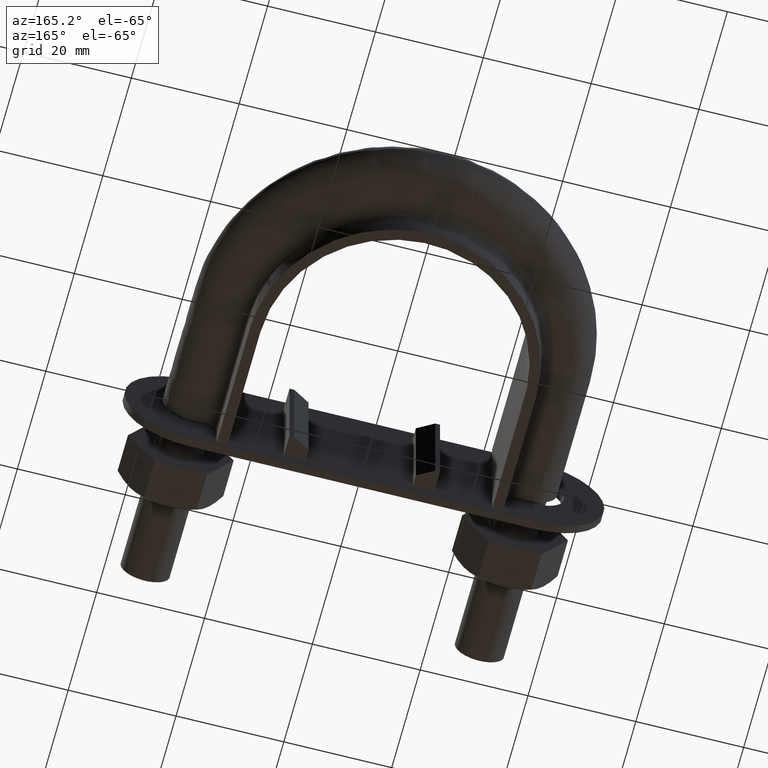
[diagram: clean part render]
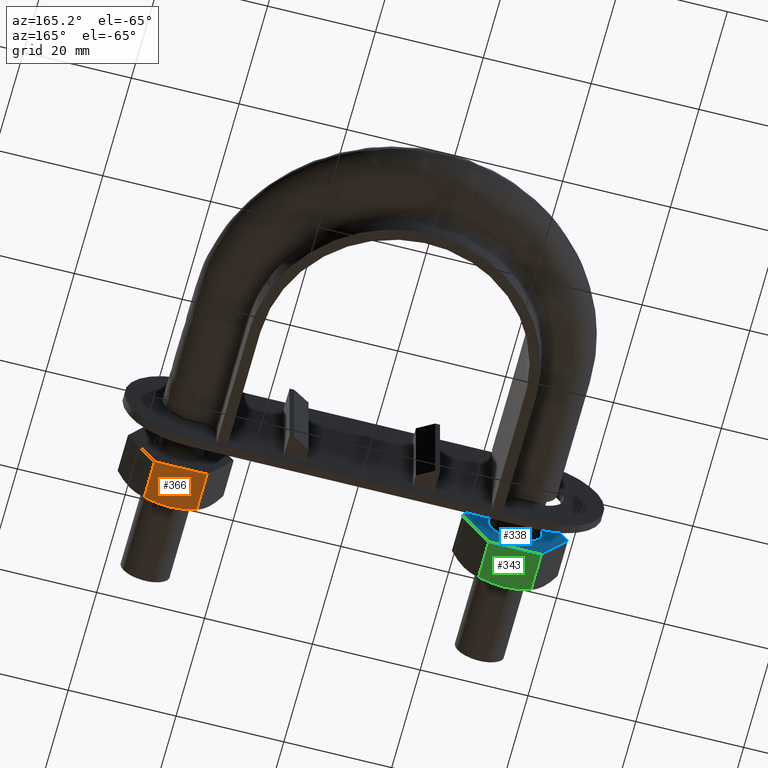
[diagram: same view with three faces highlighted in distinct colors, each labeled with its STEP entity id]
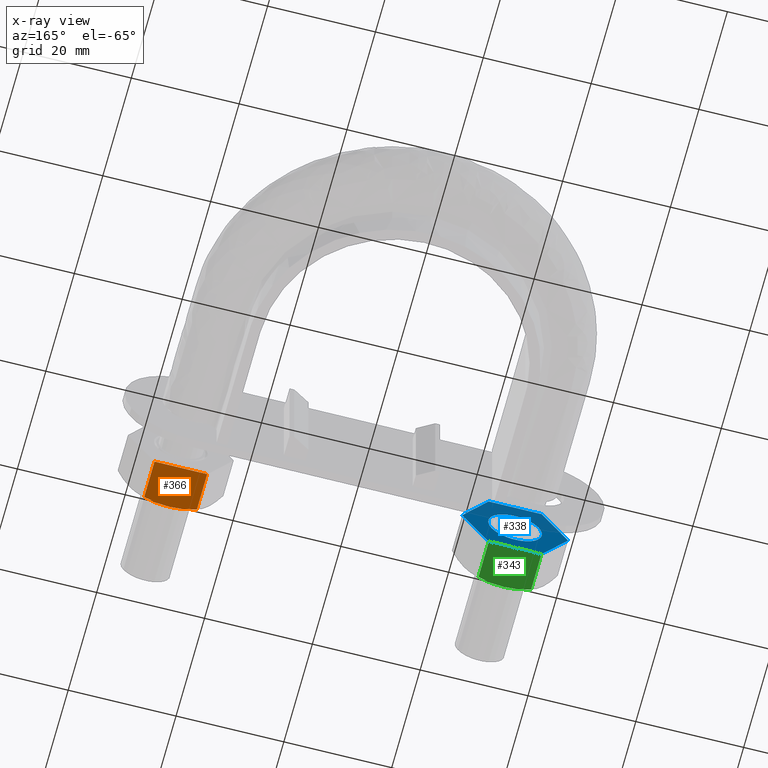
[diagram: x-ray of the same camera — body ghosted, the three highlighted faces saturated]
A machine part, auxiliary view with three faces highlighted in distinct colors.
The next image is the same camera in x-ray (body ghosted, the three faces saturated) — at least one of them is partly hidden behind the body in this view.
Their STEP definitions:

[orange] entity #366 — the highlighted planar face has unit normal (-0, -0, 1).
#366 = ADVANCED_FACE( '', ( #607 ), #608, .F. );
#607 = FACE_OUTER_BOUND( '', #1689, .T. );
#608 = PLANE( '', #1690 );
#1689 = EDGE_LOOP( '', ( #2450, #2451, #2452, #2453, #2454 ) );
#1690 = AXIS2_PLACEMENT_3D( '', #2455, #2456, #2457 );
#2450 = ORIENTED_EDGE( '', *, *, #2771, .F. );
#2451 = ORIENTED_EDGE( '', *, *, #2766, .F. );
#2452 = ORIENTED_EDGE( '', *, *, #2772, .F. );
#2453 = ORIENTED_EDGE( '', *, *, #2758, .F. );
#2454 = ORIENTED_EDGE( '', *, *, #2773, .F. );
#2455 = CARTESIAN_POINT( '', ( 35.9074772881823, 25.0000000000000, -8.49999999995891 ) );
#2456 = DIRECTION( '', ( -8.30657764794306E-012, -3.06151588453560E-016, 1.00000000000000 ) );
#2457 = DIRECTION( '', ( 1.00000000000000, -2.44921270767019E-016, 8.30657764794306E-012 ) );
#2758 = EDGE_CURVE( '', #3142, #3144, #3145, .T. );
#2766 = EDGE_CURVE( '', #3156, #3105, #3158, .T. );
#2771 = EDGE_CURVE( '', #3105, #3163, #3164, .T. );
#2772 = EDGE_CURVE( '', #3144, #3156, #3165, .F. );
#2773 = EDGE_CURVE( '', #3163, #3142, #3166, .T. );
#3105 = VERTEX_POINT( '', #3913 );
#3142 = VERTEX_POINT( '', #3968 );
#3144 = VERTEX_POINT( '', #3970 );
#3145 = LINE( '', #3971, #3972 );
#3156 = VERTEX_POINT( '', #3993 );
#3158 = B_SPLINE_CURVE_WITH_KNOTS( '', 3, ( #3995, #3996, #3997, #3998, #3999, #4000 ), .UNSPECIFIED., .F., .F., ( 4, 2, 4 ), ( 4.83064900408887E-007, 0.00246777364959045, 0.00493506423428049 ), .UNSPECIFIED. );
#3163 = VERTEX_POINT( '', #4017 );
#3164 = B_SPLINE_CURVE_WITH_KNOTS( '', 3, ( #4018, #4019, #4020, #4021, #4022, #4023, #4024, #4025 ), .UNSPECIFIED., .F., .F., ( 4, 2, 2, 4 ), ( 0.00493506423428049, 0.00616384870526260, 0.00739263317624470, 0.00985020211820889 ), .UNSPECIFIED. );
#3165 = LINE( '', #4026, #4027 );
#3166 = LINE( '', #4028, #4029 );
#3913 = CARTESIAN_POINT( '', ( 31.0000000000706, 17.0000000000012, -8.49999999999903 ) );
#3968 = CARTESIAN_POINT( '', ( 35.8774993593733, 25.0000000000000, -8.49999999995915 ) );
#3970 = CARTESIAN_POINT( '', ( 26.1225006407679, 25.0000000000000, -8.50000000003891 ) );
#3971 = CARTESIAN_POINT( '', ( 26.1000000000708, 25.0000000000000, -8.50000000003909 ) );
#3972 = VECTOR( '', #4386, 1000.00000000006 );
#3993 = CARTESIAN_POINT( '', ( 26.1225006407679, 17.7505553499476, -8.50000000003891 ) );
#3995 = CARTESIAN_POINT( '', ( 26.1225006407680, 17.7505553499480, -8.50000000004019 ) );
#3996 = CARTESIAN_POINT( '', ( 26.9206053693297, 17.5212203171293, -8.50000000003356 ) );
#3997 = CARTESIAN_POINT( '', ( 27.7244743058135, 17.3324525365456, -8.50000000002688 ) );
#3998 = CARTESIAN_POINT( '', ( 29.3487653826148, 17.0714148540601, -8.50000000001339 ) );
#3999 = CARTESIAN_POINT( '', ( 30.1693090168289, 17.0000000000015, -8.50000000000657 ) );
#4000 = CARTESIAN_POINT( '', ( 31.0000000000707, 17.0000000000015, -8.49999999999967 ) );
#4017 = CARTESIAN_POINT( '', ( 35.8774993593733, 17.7505553499476, -8.49999999995915 ) );
#4018 = CARTESIAN_POINT( '', ( 31.0000000000707, 17.0000000000015, -8.49999999999967 ) );
#4019 = CARTESIAN_POINT( '', ( 31.4137089432840, 17.0000000000015, -8.49999999999624 ) );
#4020 = CARTESIAN_POINT( '', ( 31.8294869254980, 17.0177112081779, -8.49999999999278 ) );
#4021 = CARTESIAN_POINT( '', ( 32.6519999770928, 17.0863021936228, -8.49999999998595 ) );
#4022 = CARTESIAN_POINT( '', ( 33.0605223338535, 17.1371116504209, -8.49999999998256 ) );
#4023 = CARTESIAN_POINT( '', ( 34.2788691257375, 17.3331494013928, -8.49999999997244 ) );
#4024 = CARTESIAN_POINT( '', ( 35.0815000651596, 17.5218253127370, -8.49999999996577 ) );
#4025 = CARTESIAN_POINT( '', ( 35.8774993593733, 17.7505553499480, -8.49999999995916 ) );
#4026 = CARTESIAN_POINT( '', ( 26.1225006407679, 25.0000000000000, -8.50000000003891 ) );
#4027 = VECTOR( '', #4401, 999.999999999950 );
#4028 = CARTESIAN_POINT( '', ( 35.8774993593733, 25.0000000000000, -8.49999999995915 ) );
#4029 = VECTOR( '', #4402, 999.999999999950 );
#4386 = DIRECTION( '', ( -1.00000000000000, 2.44921270766979E-016, -8.17579337564160E-012 ) );
#4401 = DIRECTION( '', ( 2.44921270764475E-016, 1.00000000000000, 3.06151588455594E-016 ) );
#4402 = DIRECTION( '', ( 2.44921270764475E-016, 1.00000000000000, 3.06151588455594E-016 ) );

[blue] entity #338 — the highlighted planar face has unit normal (-0, -1, -0).
#338 = ADVANCED_FACE( '', ( #545, #546 ), #547, .F. );
#545 = FACE_BOUND( '', #1627, .T. );
#546 = FACE_OUTER_BOUND( '', #1628, .T. );
#547 = PLANE( '', #1629 );
#1627 = EDGE_LOOP( '', ( #2231 ) );
#1628 = EDGE_LOOP( '', ( #2232, #2233, #2234, #2235, #2236, #2237, #2238, #2239, #2240, #2241, #2242, #2243 ) );
#1629 = AXIS2_PLACEMENT_3D( '', #2244, #2245, #2246 );
#2231 = ORIENTED_EDGE( '', *, *, #2697, .F. );
#2232 = ORIENTED_EDGE( '', *, *, #2698, .T. );
#2233 = ORIENTED_EDGE( '', *, *, #2699, .T. );
#2234 = ORIENTED_EDGE( '', *, *, #2700, .T. );
#2235 = ORIENTED_EDGE( '', *, *, #2693, .T. );
#2236 = ORIENTED_EDGE( '', *, *, #2701, .T. );
#2237 = ORIENTED_EDGE( '', *, *, #2702, .T. );
#2238 = ORIENTED_EDGE( '', *, *, #2703, .T. );
#2239 = ORIENTED_EDGE( '', *, *, #2704, .T. );
#2240 = ORIENTED_EDGE( '', *, *, #2705, .T. );
#2241 = ORIENTED_EDGE( '', *, *, #2706, .T. );
#2242 = ORIENTED_EDGE( '', *, *, #2707, .T. );
#2243 = ORIENTED_EDGE( '', *, *, #2708, .T. );
#2244 = CARTESIAN_POINT( '', ( -35.8999999999293, 25.0000000000000, -8.48704895712659 ) );
#2245 = DIRECTION( '', ( -2.44921270764475E-016, -1.00000000000000, -3.06151588455594E-016 ) );
#2246 = DIRECTION( '', ( -0.866025403788559, 5.90322481845998E-017, 0.499999999992863 ) );
#2693 = EDGE_CURVE( '', #3034, #3032, #3035, .T. );
#2697 = EDGE_CURVE( '', #3040, #3040, #3041, .T. );
#2698 = EDGE_CURVE( '', #3042, #3043, #3044, .T. );
#2699 = EDGE_CURVE( '', #3043, #3045, #3046, .T. );
#2700 = EDGE_CURVE( '', #3045, #3034, #3047, .T. );
#2701 = EDGE_CURVE( '', #3032, #3048, #3049, .T. );
#2702 = EDGE_CURVE( '', #3048, #3050, #3051, .T. );
#2703 = EDGE_CURVE( '', #3050, #3052, #3053, .T. );
#2704 = EDGE_CURVE( '', #3052, #3054, #3055, .T. );
#2705 = EDGE_CURVE( '', #3054, #3056, #3057, .T. );
#2706 = EDGE_CURVE( '', #3056, #3058, #3059, .T. );
#2707 = EDGE_CURVE( '', #3058, #3060, #3061, .T. );
#2708 = EDGE_CURVE( '', #3060, #3042, #3062, .T. );
#3032 = VERTEX_POINT( '', #3759 );
#3034 = VERTEX_POINT( '', #3762 );
#3035 = LINE( '', #3763, #3764 );
#3040 = VERTEX_POINT( '', #3777 );
#3041 = CIRCLE( '', #3778, 5.00000000000000 );
#3042 = VERTEX_POINT( '', #3779 );
#3043 = VERTEX_POINT( '', #3780 );
#3044 = CIRCLE( '', #3781, 9.80000000000000 );
#3045 = VERTEX_POINT( '', #3782 );
#3046 = LINE( '', #3783, #3784 );
#3047 = CIRCLE( '', #3785, 9.80000000000000 );
#3048 = VERTEX_POINT( '', #3786 );
#3049 = CIRCLE( '', #3787, 9.80000000000000 );
#3050 = VERTEX_POINT( '', #3788 );
#3051 = LINE( '', #3789, #3790 );
#3052 = VERTEX_POINT( '', #3791 );
#3053 = CIRCLE( '', #3792, 9.80000000000000 );
#3054 = VERTEX_POINT( '', #3793 );
#3055 = LINE( '', #3794, #3795 );
#3056 = VERTEX_POINT( '', #3796 );
#3057 = CIRCLE( '', #3797, 9.80000000000000 );
#3058 = VERTEX_POINT( '', #3798 );
#3059 = LINE( '', #3799, #3800 );
#3060 = VERTEX_POINT( '', #3801 );
#3061 = CIRCLE( '', #3802, 9.80000000000000 );
#3062 = LINE( '', #3803, #3804 );
#3759 = CARTESIAN_POINT( '', ( -26.1225006407679, 25.0000000000000, 8.50000000003892 ) );
#3762 = CARTESIAN_POINT( '', ( -35.8774993593733, 25.0000000000000, 8.49999999995917 ) );
#3763 = CARTESIAN_POINT( '', ( -35.9000000000704, 25.0000000000000, 8.49999999995899 ) );
#3764 = VECTOR( '', #4276, 1000.00000000006 );
#3777 = CARTESIAN_POINT( '', ( -26.6698729810572, 25.0000000000000, -2.49999999996431 ) );
#3778 = AXIS2_PLACEMENT_3D( '', #4281, #4282, #4283 );
#3779 = CARTESIAN_POINT( '', ( -40.7999656118186, 25.0000000000000, -0.0259616479814919 ) );
#3780 = CARTESIAN_POINT( '', ( -40.7999656118190, 25.0000000000000, 0.0259616478212634 ) );
#3781 = AXIS2_PLACEMENT_3D( '', #4284, #4285, #4286 );
#3782 = CARTESIAN_POINT( '', ( -35.9224662525865, 25.0000000000000, 8.47403835205743 ) );
#3783 = CARTESIAN_POINT( '', ( -43.2612159321321, 25.0000000000000, -4.23704895718726 ) );
#3784 = VECTOR( '', #4287, 999.999999999950 );
#3785 = AXIS2_PLACEMENT_3D( '', #4288, #4289, #4290 );
#3786 = CARTESIAN_POINT( '', ( -26.0775337475543, 25.0000000000000, 8.47403835213792 ) );
#3787 = AXIS2_PLACEMENT_3D( '', #4291, #4292, #4293 );
#3788 = CARTESIAN_POINT( '', ( -21.2000343881814, 25.0000000000000, 0.0259616479815102 ) );
#3789 = CARTESIAN_POINT( '', ( -21.1887840678327, 25.0000000000000, 0.00647552153647370 ) );
#3790 = VECTOR( '', #4294, 1000.00000000006 );
#3791 = CARTESIAN_POINT( '', ( -21.2000343881810, 25.0000000000000, -0.0259616478212477 ) );
#3792 = AXIS2_PLACEMENT_3D( '', #4295, #4296, #4297 );
#3793 = CARTESIAN_POINT( '', ( -26.0775337474135, 25.0000000000000, -8.47403835205741 ) );
#3794 = CARTESIAN_POINT( '', ( -28.5387840677266, 25.0000000000000, -12.7370489570659 ) );
#3795 = VECTOR( '', #4298, 999.999999999950 );
#3796 = CARTESIAN_POINT( '', ( -26.1225006406267, 25.0000000000000, -8.49999999995915 ) );
#3797 = AXIS2_PLACEMENT_3D( '', #4299, #4300, #4301 );
#3798 = CARTESIAN_POINT( '', ( -35.8774993592321, 25.0000000000000, -8.50000000003891 ) );
#3799 = CARTESIAN_POINT( '', ( -35.8999999999292, 25.0000000000000, -8.50000000003909 ) );
#3800 = VECTOR( '', #4302, 1000.00000000006 );
#3801 = CARTESIAN_POINT( '', ( -35.9224662524457, 25.0000000000000, -8.47403835213790 ) );
#3802 = AXIS2_PLACEMENT_3D( '', #4303, #4304, #4305 );
#3803 = CARTESIAN_POINT( '', ( -35.9112159320970, 25.0000000000000, -8.49352447858293 ) );
#3804 = VECTOR( '', #4306, 1000.00000000006 );
#4276 = DIRECTION( '', ( 1.00000000000000, -2.44921270766979E-016, 8.17579337564160E-012 ) );
#4281 = CARTESIAN_POINT( '', ( -31.0000000000000, 25.0000000000000, 7.85278824388600E-015 ) );
#4282 = DIRECTION( '', ( 2.44921270764476E-016, 1.00000000000000, 3.06151588455594E-016 ) );
#4283 = DIRECTION( '', ( 0.866025403788559, -5.90322481845998E-017, -0.499999999992863 ) );
#4284 = CARTESIAN_POINT( '', ( -31.0000000000000, 25.0000000000000, 7.85278824388600E-015 ) );
#4285 = DIRECTION( '', ( 2.44921270764475E-016, 1.00000000000000, 3.06151588455594E-016 ) );
#4286 = DIRECTION( '', ( 0.866025403788559, -5.90322481845998E-017, -0.499999999992863 ) );
#4287 = DIRECTION( '', ( 0.499999999992863, -3.87595688393255E-016, 0.866025403788559 ) );
#4288 = CARTESIAN_POINT( '', ( -31.0000000000000, 25.0000000000000, 7.85278824388600E-015 ) );
#4289 = DIRECTION( '', ( 2.44921270764475E-016, 1.00000000000000, 3.06151588455594E-016 ) );
#4290 = DIRECTION( '', ( 0.866025403788559, -5.90322481845998E-017, -0.499999999992863 ) );
#4291 = CARTESIAN_POINT( '', ( -31.0000000000000, 25.0000000000000, 7.85278824388600E-015 ) );
#4292 = DIRECTION( '', ( 2.44921270764475E-016, 1.00000000000000, 3.06151588455594E-016 ) );
#4293 = DIRECTION( '', ( 0.866025403788559, -5.90322481845998E-017, -0.499999999992863 ) );
#4294 = DIRECTION( '', ( 0.500000000007194, 1.42674417626232E-016, -0.866025403780285 ) );
#4295 = CARTESIAN_POINT( '', ( -31.0000000000000, 25.0000000000000, 7.85278824388600E-015 ) );
#4296 = DIRECTION( '', ( 2.44921270764475E-016, 1.00000000000000, 3.06151588455594E-016 ) );
#4297 = DIRECTION( '', ( 0.866025403788559, -5.90322481845998E-017, -0.499999999992863 ) );
#4298 = DIRECTION( '', ( -0.499999999992863, 3.87595688393255E-016, -0.866025403788559 ) );
#4299 = CARTESIAN_POINT( '', ( -31.0000000000000, 25.0000000000000, 7.85278824388600E-015 ) );
#4300 = DIRECTION( '', ( 2.44921270764475E-016, 1.00000000000000, 3.06151588455594E-016 ) );
#4301 = DIRECTION( '', ( 0.866025403788559, -5.90322481845998E-017, -0.499999999992863 ) );
#4302 = DIRECTION( '', ( -1.00000000000000, 2.44921270766979E-016, -8.17579337564160E-012 ) );
#4303 = CARTESIAN_POINT( '', ( -31.0000000000000, 25.0000000000000, 7.85278824388600E-015 ) );
#4304 = DIRECTION( '', ( 2.44921270764475E-016, 1.00000000000000, 3.06151588455594E-016 ) );
#4305 = DIRECTION( '', ( 0.866025403788559, -5.90322481845998E-017, -0.499999999992863 ) );
#4306 = DIRECTION( '', ( -0.500000000007194, -1.42674417626232E-016, 0.866025403780285 ) );

[green] entity #343 — the highlighted planar face has unit normal (-0, -0, 1).
#343 = ADVANCED_FACE( '', ( #556 ), #557, .F. );
#556 = FACE_OUTER_BOUND( '', #1638, .T. );
#557 = PLANE( '', #1639 );
#1638 = EDGE_LOOP( '', ( #2277, #2278, #2279, #2280, #2281 ) );
#1639 = AXIS2_PLACEMENT_3D( '', #2282, #2283, #2284 );
#2277 = ORIENTED_EDGE( '', *, *, #2719, .F. );
#2278 = ORIENTED_EDGE( '', *, *, #2714, .F. );
#2279 = ORIENTED_EDGE( '', *, *, #2720, .F. );
#2280 = ORIENTED_EDGE( '', *, *, #2706, .F. );
#2281 = ORIENTED_EDGE( '', *, *, #2721, .F. );
#2282 = CARTESIAN_POINT( '', ( -26.0925227118178, 25.0000000000000, -8.49999999995891 ) );
#2283 = DIRECTION( '', ( -8.30657764794306E-012, -3.06151588453560E-016, 1.00000000000000 ) );
#2284 = DIRECTION( '', ( 1.00000000000000, -2.44921270767019E-016, 8.30657764794306E-012 ) );
#2706 = EDGE_CURVE( '', #3056, #3058, #3059, .T. );
#2714 = EDGE_CURVE( '', #3070, #3019, #3072, .T. );
#2719 = EDGE_CURVE( '', #3019, #3077, #3078, .T. );
#2720 = EDGE_CURVE( '', #3058, #3070, #3079, .F. );
#2721 = EDGE_CURVE( '', #3077, #3056, #3080, .T. );
#3019 = VERTEX_POINT( '', #3741 );
#3056 = VERTEX_POINT( '', #3796 );
#3058 = VERTEX_POINT( '', #3798 );
#3059 = LINE( '', #3799, #3800 );
#3070 = VERTEX_POINT( '', #3821 );
#3072 = B_SPLINE_CURVE_WITH_KNOTS( '', 3, ( #3823, #3824, #3825, #3826, #3827, #3828 ), .UNSPECIFIED., .F., .F., ( 4, 2, 4 ), ( 4.83064900412321E-007, 0.00246777364959045, 0.00493506423428049 ), .UNSPECIFIED. );
#3077 = VERTEX_POINT( '', #3845 );
#3078 = B_SPLINE_CURVE_WITH_KNOTS( '', 3, ( #3846, #3847, #3848, #3849, #3850, #3851, #3852, #3853 ), .UNSPECIFIED., .F., .F., ( 4, 2, 2, 4 ), ( 0.00493506423428049, 0.00616384870526259, 0.00739263317624468, 0.00985020211820888 ), .UNSPECIFIED. );
#3079 = LINE( '', #3854, #3855 );
#3080 = LINE( '', #3856, #3857 );
#3741 = CARTESIAN_POINT( '', ( -30.9999999999294, 17.0000000000012, -8.49999999999903 ) );
#3796 = CARTESIAN_POINT( '', ( -26.1225006406267, 25.0000000000000, -8.49999999995915 ) );
#3798 = CARTESIAN_POINT( '', ( -35.8774993592321, 25.0000000000000, -8.50000000003891 ) );
#3799 = CARTESIAN_POINT( '', ( -35.8999999999292, 25.0000000000000, -8.50000000003909 ) );
#3800 = VECTOR( '', #4302, 1000.00000000006 );
#3821 = CARTESIAN_POINT( '', ( -35.8774993592321, 17.7505553499476, -8.50000000003891 ) );
#3823 = CARTESIAN_POINT( '', ( -35.8774993592320, 17.7505553499480, -8.50000000004019 ) );
#3824 = CARTESIAN_POINT( '', ( -35.0793946306703, 17.5212203171293, -8.50000000003356 ) );
#3825 = CARTESIAN_POINT( '', ( -34.2755256941865, 17.3324525365456, -8.50000000002688 ) );
#3826 = CARTESIAN_POINT( '', ( -32.6512346173852, 17.0714148540601, -8.50000000001339 ) );
#3827 = CARTESIAN_POINT( '', ( -31.8306909831711, 17.0000000000015, -8.50000000000657 ) );
#3828 = CARTESIAN_POINT( '', ( -30.9999999999293, 17.0000000000015, -8.49999999999967 ) );
#3845 = CARTESIAN_POINT( '', ( -26.1225006406267, 17.7505553499476, -8.49999999995915 ) );
#3846 = CARTESIAN_POINT( '', ( -30.9999999999293, 17.0000000000015, -8.49999999999967 ) );
#3847 = CARTESIAN_POINT( '', ( -30.5862910567160, 17.0000000000015, -8.49999999999624 ) );
#3848 = CARTESIAN_POINT( '', ( -30.1705130745020, 17.0177112081779, -8.49999999999279 ) );
#3849 = CARTESIAN_POINT( '', ( -29.3480000229072, 17.0863021936228, -8.49999999998595 ) );
#3850 = CARTESIAN_POINT( '', ( -28.9394776661465, 17.1371116504209, -8.49999999998256 ) );
#3851 = CARTESIAN_POINT( '', ( -27.7211308742625, 17.3331494013928, -8.49999999997244 ) );
#3852 = CARTESIAN_POINT( '', ( -26.9184999348404, 17.5218253127370, -8.49999999996577 ) );
#3853 = CARTESIAN_POINT( '', ( -26.1225006406268, 17.7505553499480, -8.49999999995916 ) );
#3854 = CARTESIAN_POINT( '', ( -35.8774993592321, 25.0000000000000, -8.50000000003891 ) );
#3855 = VECTOR( '', #4317, 999.999999999950 );
#3856 = CARTESIAN_POINT( '', ( -26.1225006406267, 25.0000000000000, -8.49999999995915 ) );
#3857 = VECTOR( '', #4318, 999.999999999950 );
#4302 = DIRECTION( '', ( -1.00000000000000, 2.44921270766979E-016, -8.17579337564160E-012 ) );
#4317 = DIRECTION( '', ( 2.44921270764475E-016, 1.00000000000000, 3.06151588455594E-016 ) );
#4318 = DIRECTION( '', ( 2.44921270764475E-016, 1.00000000000000, 3.06151588455594E-016 ) );